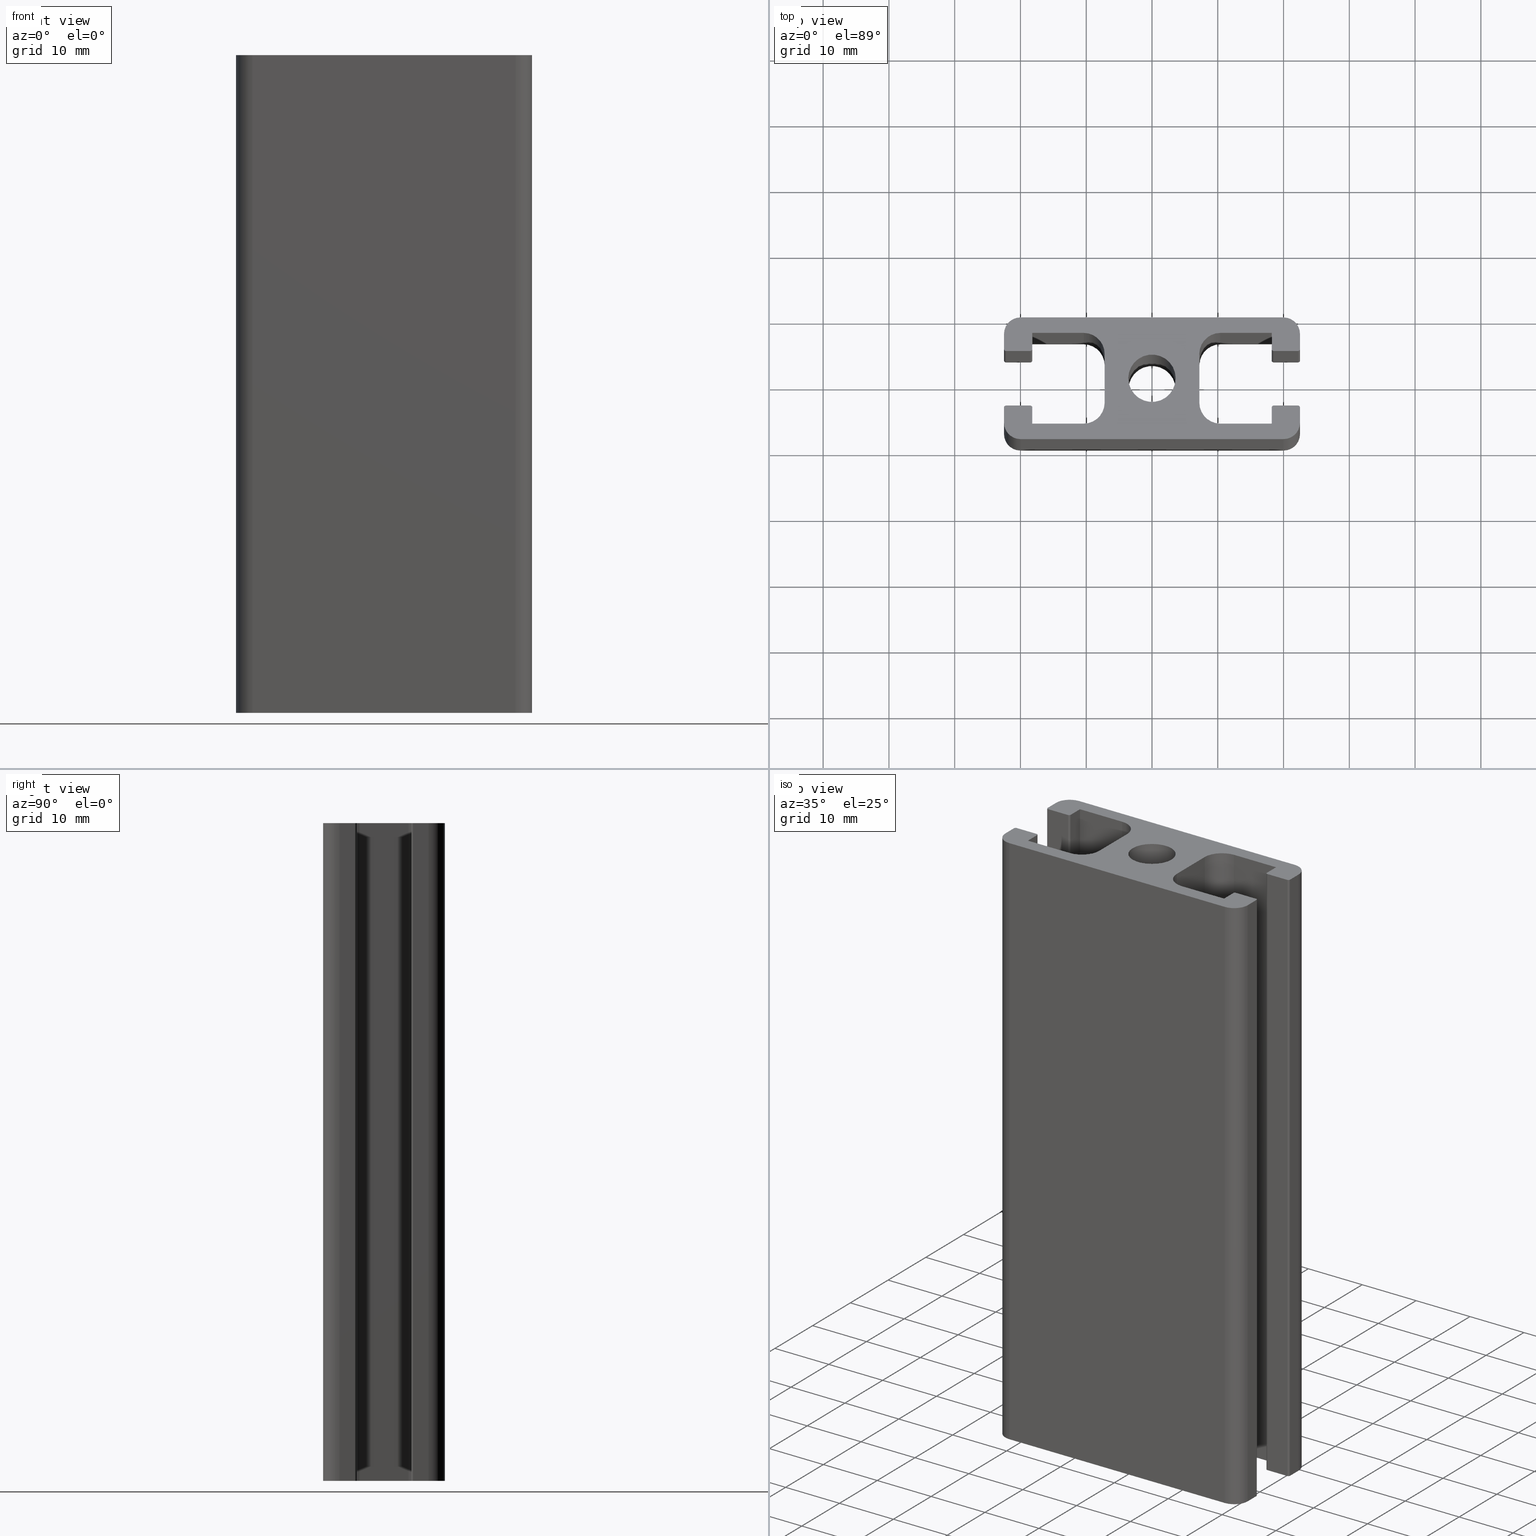
[diagram: canonical four-view strip — front | top / right | iso, engineering-drawing reading convention]
A machine part, canonical four-view strip (front | top / right | iso — engineering-drawing reading convention). The complete STEP part file that produces these views, byte-faithful:
ISO-10303-21;
HEADER;
/* Generated by software containing ST-Developer
 * from STEP Tools, Inc. (www.steptools.com) 
 */

FILE_DESCRIPTION(
/* description */ (''),
/* implementation_level */ '2;1');

FILE_NAME(
/* name */ 
'Q:\\Catalogo\\1_Profili Dierre\\Per Download Web\\Serie 45\\BPRDD0000
128.stp',
/* time_stamp */ '2017-07-12T17:33:23+02:00',
/* author */ ('fzagni'),
/* organization */ (''),
/* preprocessor_version */ 'ST-DEVELOPER v16.1',
/* originating_system */ 'Autodesk Inventor 2016',
/* authorisation */ '');

FILE_SCHEMA (('AUTOMOTIVE_DESIGN { 1 0 10303 214 3 1 1 }'));
ENDSEC;

DATA;
#10=MECHANICAL_DESIGN_GEOMETRIC_PRESENTATION_REPRESENTATION('',(#13),#1293);
#11=SHAPE_REPRESENTATION_RELATIONSHIP('SRR','None',#1302,#12);
#12=ADVANCED_BREP_SHAPE_REPRESENTATION('',(#14),#1292);
#13=STYLED_ITEM('',(#1311),#14);
#14=MANIFOLD_SOLID_BREP('Solido1',#767);
#15=PLANE('',#775);
#16=PLANE('',#779);
#17=PLANE('',#780);
#18=PLANE('',#784);
#19=PLANE('',#788);
#20=PLANE('',#789);
#21=PLANE('',#793);
#22=PLANE('',#800);
#23=PLANE('',#804);
#24=PLANE('',#805);
#25=PLANE('',#809);
#26=PLANE('',#816);
#27=PLANE('',#820);
#28=PLANE('',#821);
#29=PLANE('',#822);
#30=PLANE('',#823);
#31=PLANE('',#824);
#32=PLANE('',#825);
#33=PLANE('',#826);
#34=PLANE('',#835);
#35=PLANE('',#840);
#36=PLANE('',#841);
#37=LINE('',#1077,#113);
#38=LINE('',#1080,#114);
#39=LINE('',#1083,#115);
#40=LINE('',#1085,#116);
#41=LINE('',#1086,#117);
#42=LINE('',#1092,#118);
#43=LINE('',#1095,#119);
#44=LINE('',#1097,#120);
#45=LINE('',#1098,#121);
#46=LINE('',#1101,#122);
#47=LINE('',#1103,#123);
#48=LINE('',#1104,#124);
#49=LINE('',#1110,#125);
#50=LINE('',#1113,#126);
#51=LINE('',#1115,#127);
#52=LINE('',#1116,#128);
#53=LINE('',#1122,#129);
#54=LINE('',#1125,#130);
#55=LINE('',#1127,#131);
#56=LINE('',#1128,#132);
#57=LINE('',#1131,#133);
#58=LINE('',#1133,#134);
#59=LINE('',#1134,#135);
#60=LINE('',#1140,#136);
#61=LINE('',#1143,#137);
#62=LINE('',#1145,#138);
#63=LINE('',#1146,#139);
#64=LINE('',#1152,#140);
#65=LINE('',#1158,#141);
#66=LINE('',#1161,#142);
#67=LINE('',#1164,#143);
#68=LINE('',#1166,#144);
#69=LINE('',#1167,#145);
#70=LINE('',#1172,#146);
#71=LINE('',#1176,#147);
#72=LINE('',#1178,#148);
#73=LINE('',#1179,#149);
#74=LINE('',#1182,#150);
#75=LINE('',#1184,#151);
#76=LINE('',#1185,#152);
#77=LINE('',#1190,#153);
#78=LINE('',#1194,#154);
#79=LINE('',#1196,#155);
#80=LINE('',#1197,#156);
#81=LINE('',#1202,#157);
#82=LINE('',#1209,#158);
#83=LINE('',#1212,#159);
#84=LINE('',#1215,#160);
#85=LINE('',#1217,#161);
#86=LINE('',#1218,#162);
#87=LINE('',#1223,#163);
#88=LINE('',#1227,#164);
#89=LINE('',#1229,#165);
#90=LINE('',#1230,#166);
#91=LINE('',#1232,#167);
#92=LINE('',#1233,#168);
#93=LINE('',#1236,#169);
#94=LINE('',#1238,#170);
#95=LINE('',#1239,#171);
#96=LINE('',#1242,#172);
#97=LINE('',#1244,#173);
#98=LINE('',#1245,#174);
#99=LINE('',#1248,#175);
#100=LINE('',#1250,#176);
#101=LINE('',#1251,#177);
#102=LINE('',#1254,#178);
#103=LINE('',#1256,#179);
#104=LINE('',#1257,#180);
#105=LINE('',#1262,#181);
#106=LINE('',#1267,#182);
#107=LINE('',#1272,#183);
#108=LINE('',#1275,#184);
#109=LINE('',#1279,#185);
#110=LINE('',#1280,#186);
#111=LINE('',#1285,#187);
#112=LINE('',#1288,#188);
#113=VECTOR('',#854,100.);
#114=VECTOR('',#857,100.);
#115=VECTOR('',#860,3.7);
#116=VECTOR('',#861,3.7);
#117=VECTOR('',#862,100.);
#118=VECTOR('',#869,100.);
#119=VECTOR('',#872,2.45);
#120=VECTOR('',#873,2.45);
#121=VECTOR('',#874,100.);
#122=VECTOR('',#877,7.8);
#123=VECTOR('',#878,7.8);
#124=VECTOR('',#879,100.);
#125=VECTOR('',#886,100.);
#126=VECTOR('',#889,7.4);
#127=VECTOR('',#890,7.4);
#128=VECTOR('',#891,100.);
#129=VECTOR('',#898,100.);
#130=VECTOR('',#901,7.8);
#131=VECTOR('',#902,7.8);
#132=VECTOR('',#903,100.);
#133=VECTOR('',#906,2.45);
#134=VECTOR('',#907,2.45);
#135=VECTOR('',#908,100.);
#136=VECTOR('',#915,100.);
#137=VECTOR('',#918,3.7);
#138=VECTOR('',#919,3.7);
#139=VECTOR('',#920,100.);
#140=VECTOR('',#927,100.);
#141=VECTOR('',#932,100.);
#142=VECTOR('',#935,100.);
#143=VECTOR('',#938,7.4);
#144=VECTOR('',#939,100.);
#145=VECTOR('',#940,7.4);
#146=VECTOR('',#945,100.);
#147=VECTOR('',#950,7.8);
#148=VECTOR('',#951,100.);
#149=VECTOR('',#952,7.8);
#150=VECTOR('',#955,2.45);
#151=VECTOR('',#956,100.);
#152=VECTOR('',#957,2.45);
#153=VECTOR('',#962,100.);
#154=VECTOR('',#967,3.7);
#155=VECTOR('',#968,100.);
#156=VECTOR('',#969,3.7);
#157=VECTOR('',#974,100.);
#158=VECTOR('',#981,100.);
#159=VECTOR('',#984,100.);
#160=VECTOR('',#987,3.7);
#161=VECTOR('',#988,100.);
#162=VECTOR('',#989,3.7);
#163=VECTOR('',#994,100.);
#164=VECTOR('',#999,2.45);
#165=VECTOR('',#1000,100.);
#166=VECTOR('',#1001,2.45);
#167=VECTOR('',#1004,7.8);
#168=VECTOR('',#1005,7.8);
#169=VECTOR('',#1008,2.3);
#170=VECTOR('',#1009,100.);
#171=VECTOR('',#1010,2.3);
#172=VECTOR('',#1013,2.30000000000058);
#173=VECTOR('',#1014,100.);
#174=VECTOR('',#1015,2.30000000000058);
#175=VECTOR('',#1018,2.3);
#176=VECTOR('',#1019,100.);
#177=VECTOR('',#1020,2.3);
#178=VECTOR('',#1023,2.3000000000006);
#179=VECTOR('',#1024,100.);
#180=VECTOR('',#1025,2.3000000000006);
#181=VECTOR('',#1030,40.);
#182=VECTOR('',#1035,40.);
#183=VECTOR('',#1042,100.);
#184=VECTOR('',#1045,100.);
#185=VECTOR('',#1050,100.);
#186=VECTOR('',#1051,40.);
#187=VECTOR('',#1058,100.);
#188=VECTOR('',#1063,40.);
#189=FACE_BOUND('',#232,.T.);
#190=FACE_BOUND('',#264,.T.);
#191=FACE_BOUND('',#272,.T.);
#192=FACE_OUTER_BOUND('',#231,.T.);
#193=FACE_OUTER_BOUND('',#233,.T.);
#194=FACE_OUTER_BOUND('',#234,.T.);
#195=FACE_OUTER_BOUND('',#235,.T.);
#196=FACE_OUTER_BOUND('',#236,.T.);
#197=FACE_OUTER_BOUND('',#237,.T.);
#198=FACE_OUTER_BOUND('',#238,.T.);
#199=FACE_OUTER_BOUND('',#239,.T.);
#200=FACE_OUTER_BOUND('',#240,.T.);
#201=FACE_OUTER_BOUND('',#241,.T.);
#202=FACE_OUTER_BOUND('',#242,.T.);
#203=FACE_OUTER_BOUND('',#243,.T.);
#204=FACE_OUTER_BOUND('',#244,.T.);
#205=FACE_OUTER_BOUND('',#245,.T.);
#206=FACE_OUTER_BOUND('',#246,.T.);
#207=FACE_OUTER_BOUND('',#247,.T.);
#208=FACE_OUTER_BOUND('',#248,.T.);
#209=FACE_OUTER_BOUND('',#249,.T.);
#210=FACE_OUTER_BOUND('',#250,.T.);
#211=FACE_OUTER_BOUND('',#251,.T.);
#212=FACE_OUTER_BOUND('',#252,.T.);
#213=FACE_OUTER_BOUND('',#253,.T.);
#214=FACE_OUTER_BOUND('',#254,.T.);
#215=FACE_OUTER_BOUND('',#255,.T.);
#216=FACE_OUTER_BOUND('',#256,.T.);
#217=FACE_OUTER_BOUND('',#257,.T.);
#218=FACE_OUTER_BOUND('',#258,.T.);
#219=FACE_OUTER_BOUND('',#259,.T.);
#220=FACE_OUTER_BOUND('',#260,.T.);
#221=FACE_OUTER_BOUND('',#261,.T.);
#222=FACE_OUTER_BOUND('',#262,.T.);
#223=FACE_OUTER_BOUND('',#263,.T.);
#224=FACE_OUTER_BOUND('',#265,.T.);
#225=FACE_OUTER_BOUND('',#266,.T.);
#226=FACE_OUTER_BOUND('',#267,.T.);
#227=FACE_OUTER_BOUND('',#268,.T.);
#228=FACE_OUTER_BOUND('',#269,.T.);
#229=FACE_OUTER_BOUND('',#270,.T.);
#230=FACE_OUTER_BOUND('',#271,.T.);
#231=EDGE_LOOP('',(#491));
#232=EDGE_LOOP('',(#492));
#233=EDGE_LOOP('',(#493,#494,#495,#496));
#234=EDGE_LOOP('',(#497,#498,#499,#500));
#235=EDGE_LOOP('',(#501,#502,#503,#504));
#236=EDGE_LOOP('',(#505,#506,#507,#508));
#237=EDGE_LOOP('',(#509,#510,#511,#512));
#238=EDGE_LOOP('',(#513,#514,#515,#516));
#239=EDGE_LOOP('',(#517,#518,#519,#520));
#240=EDGE_LOOP('',(#521,#522,#523,#524));
#241=EDGE_LOOP('',(#525,#526,#527,#528));
#242=EDGE_LOOP('',(#529,#530,#531,#532));
#243=EDGE_LOOP('',(#533,#534,#535,#536));
#244=EDGE_LOOP('',(#537,#538,#539,#540));
#245=EDGE_LOOP('',(#541,#542,#543,#544));
#246=EDGE_LOOP('',(#545,#546,#547,#548));
#247=EDGE_LOOP('',(#549,#550,#551,#552));
#248=EDGE_LOOP('',(#553,#554,#555,#556));
#249=EDGE_LOOP('',(#557,#558,#559,#560));
#250=EDGE_LOOP('',(#561,#562,#563,#564));
#251=EDGE_LOOP('',(#565,#566,#567,#568));
#252=EDGE_LOOP('',(#569,#570,#571,#572));
#253=EDGE_LOOP('',(#573,#574,#575,#576));
#254=EDGE_LOOP('',(#577,#578,#579,#580));
#255=EDGE_LOOP('',(#581,#582,#583,#584));
#256=EDGE_LOOP('',(#585,#586,#587,#588));
#257=EDGE_LOOP('',(#589,#590,#591,#592));
#258=EDGE_LOOP('',(#593,#594,#595,#596));
#259=EDGE_LOOP('',(#597,#598,#599,#600));
#260=EDGE_LOOP('',(#601,#602,#603,#604));
#261=EDGE_LOOP('',(#605,#606,#607,#608));
#262=EDGE_LOOP('',(#609,#610,#611,#612));
#263=EDGE_LOOP('',(#613,#614,#615,#616,#617,#618,#619,#620,#621,#622,#623,
#624,#625,#626,#627,#628,#629,#630,#631,#632,#633,#634,#635,#636,#637,#638,
#639,#640,#641,#642,#643,#644,#645,#646,#647,#648));
#264=EDGE_LOOP('',(#649));
#265=EDGE_LOOP('',(#650,#651,#652,#653));
#266=EDGE_LOOP('',(#654,#655,#656,#657));
#267=EDGE_LOOP('',(#658,#659,#660,#661));
#268=EDGE_LOOP('',(#662,#663,#664,#665));
#269=EDGE_LOOP('',(#666,#667,#668,#669));
#270=EDGE_LOOP('',(#670,#671,#672,#673));
#271=EDGE_LOOP('',(#674,#675,#676,#677,#678,#679,#680,#681,#682,#683,#684,
#685,#686,#687,#688,#689,#690,#691,#692,#693,#694,#695,#696,#697,#698,#699,
#700,#701,#702,#703,#704,#705,#706,#707,#708,#709));
#272=EDGE_LOOP('',(#710));
#273=CIRCLE('',#770,3.6);
#274=CIRCLE('',#771,3.6);
#275=CIRCLE('',#773,0.299999999999404);
#276=CIRCLE('',#774,0.299999999999404);
#277=CIRCLE('',#777,0.299999999999406);
#278=CIRCLE('',#778,0.299999999999406);
#279=CIRCLE('',#782,3.19999999999359);
#280=CIRCLE('',#783,3.19999999999359);
#281=CIRCLE('',#786,3.19999999999362);
#282=CIRCLE('',#787,3.19999999999362);
#283=CIRCLE('',#791,0.299999999999404);
#284=CIRCLE('',#792,0.299999999999404);
#285=CIRCLE('',#795,0.299999999999407);
#286=CIRCLE('',#796,0.299999999999407);
#287=CIRCLE('',#798,3.1999999999936);
#288=CIRCLE('',#799,3.1999999999936);
#289=CIRCLE('',#802,3.1999999999936);
#290=CIRCLE('',#803,3.1999999999936);
#291=CIRCLE('',#807,0.299999999999406);
#292=CIRCLE('',#808,0.299999999999406);
#293=CIRCLE('',#811,0.299999999999397);
#294=CIRCLE('',#812,0.299999999999397);
#295=CIRCLE('',#814,0.299999999999399);
#296=CIRCLE('',#815,0.299999999999399);
#297=CIRCLE('',#818,0.299999999999404);
#298=CIRCLE('',#819,0.299999999999404);
#299=CIRCLE('',#827,2.5);
#300=CIRCLE('',#828,2.5);
#301=CIRCLE('',#829,2.5);
#302=CIRCLE('',#830,2.5);
#303=CIRCLE('',#832,2.5);
#304=CIRCLE('',#834,2.5);
#305=CIRCLE('',#837,2.5);
#306=CIRCLE('',#839,2.5);
#307=VERTEX_POINT('',#1068);
#308=VERTEX_POINT('',#1070);
#309=VERTEX_POINT('',#1073);
#310=VERTEX_POINT('',#1074);
#311=VERTEX_POINT('',#1076);
#312=VERTEX_POINT('',#1078);
#313=VERTEX_POINT('',#1082);
#314=VERTEX_POINT('',#1084);
#315=VERTEX_POINT('',#1088);
#316=VERTEX_POINT('',#1090);
#317=VERTEX_POINT('',#1094);
#318=VERTEX_POINT('',#1096);
#319=VERTEX_POINT('',#1100);
#320=VERTEX_POINT('',#1102);
#321=VERTEX_POINT('',#1106);
#322=VERTEX_POINT('',#1108);
#323=VERTEX_POINT('',#1112);
#324=VERTEX_POINT('',#1114);
#325=VERTEX_POINT('',#1118);
#326=VERTEX_POINT('',#1120);
#327=VERTEX_POINT('',#1124);
#328=VERTEX_POINT('',#1126);
#329=VERTEX_POINT('',#1130);
#330=VERTEX_POINT('',#1132);
#331=VERTEX_POINT('',#1136);
#332=VERTEX_POINT('',#1138);
#333=VERTEX_POINT('',#1142);
#334=VERTEX_POINT('',#1144);
#335=VERTEX_POINT('',#1148);
#336=VERTEX_POINT('',#1150);
#337=VERTEX_POINT('',#1154);
#338=VERTEX_POINT('',#1155);
#339=VERTEX_POINT('',#1157);
#340=VERTEX_POINT('',#1159);
#341=VERTEX_POINT('',#1163);
#342=VERTEX_POINT('',#1165);
#343=VERTEX_POINT('',#1169);
#344=VERTEX_POINT('',#1171);
#345=VERTEX_POINT('',#1175);
#346=VERTEX_POINT('',#1177);
#347=VERTEX_POINT('',#1181);
#348=VERTEX_POINT('',#1183);
#349=VERTEX_POINT('',#1187);
#350=VERTEX_POINT('',#1189);
#351=VERTEX_POINT('',#1193);
#352=VERTEX_POINT('',#1195);
#353=VERTEX_POINT('',#1199);
#354=VERTEX_POINT('',#1201);
#355=VERTEX_POINT('',#1205);
#356=VERTEX_POINT('',#1206);
#357=VERTEX_POINT('',#1208);
#358=VERTEX_POINT('',#1210);
#359=VERTEX_POINT('',#1214);
#360=VERTEX_POINT('',#1216);
#361=VERTEX_POINT('',#1220);
#362=VERTEX_POINT('',#1222);
#363=VERTEX_POINT('',#1226);
#364=VERTEX_POINT('',#1228);
#365=VERTEX_POINT('',#1235);
#366=VERTEX_POINT('',#1237);
#367=VERTEX_POINT('',#1241);
#368=VERTEX_POINT('',#1243);
#369=VERTEX_POINT('',#1247);
#370=VERTEX_POINT('',#1249);
#371=VERTEX_POINT('',#1253);
#372=VERTEX_POINT('',#1255);
#373=VERTEX_POINT('',#1259);
#374=VERTEX_POINT('',#1261);
#375=VERTEX_POINT('',#1264);
#376=VERTEX_POINT('',#1266);
#377=VERTEX_POINT('',#1270);
#378=VERTEX_POINT('',#1274);
#379=VERTEX_POINT('',#1278);
#380=VERTEX_POINT('',#1284);
#381=EDGE_CURVE('',#307,#307,#273,.T.);
#382=EDGE_CURVE('',#308,#308,#274,.T.);
#383=EDGE_CURVE('',#309,#310,#275,.T.);
#384=EDGE_CURVE('',#309,#311,#37,.T.);
#385=EDGE_CURVE('',#312,#311,#276,.T.);
#386=EDGE_CURVE('',#312,#310,#38,.T.);
#387=EDGE_CURVE('',#310,#313,#39,.T.);
#388=EDGE_CURVE('',#314,#312,#40,.T.);
#389=EDGE_CURVE('',#314,#313,#41,.T.);
#390=EDGE_CURVE('',#313,#315,#277,.T.);
#391=EDGE_CURVE('',#316,#314,#278,.T.);
#392=EDGE_CURVE('',#316,#315,#42,.T.);
#393=EDGE_CURVE('',#315,#317,#43,.T.);
#394=EDGE_CURVE('',#318,#316,#44,.T.);
#395=EDGE_CURVE('',#318,#317,#45,.T.);
#396=EDGE_CURVE('',#317,#319,#46,.T.);
#397=EDGE_CURVE('',#320,#318,#47,.T.);
#398=EDGE_CURVE('',#320,#319,#48,.T.);
#399=EDGE_CURVE('',#319,#321,#279,.T.);
#400=EDGE_CURVE('',#322,#320,#280,.T.);
#401=EDGE_CURVE('',#322,#321,#49,.T.);
#402=EDGE_CURVE('',#321,#323,#50,.T.);
#403=EDGE_CURVE('',#324,#322,#51,.T.);
#404=EDGE_CURVE('',#324,#323,#52,.T.);
#405=EDGE_CURVE('',#323,#325,#281,.T.);
#406=EDGE_CURVE('',#326,#324,#282,.T.);
#407=EDGE_CURVE('',#326,#325,#53,.T.);
#408=EDGE_CURVE('',#325,#327,#54,.T.);
#409=EDGE_CURVE('',#328,#326,#55,.T.);
#410=EDGE_CURVE('',#328,#327,#56,.T.);
#411=EDGE_CURVE('',#327,#329,#57,.T.);
#412=EDGE_CURVE('',#330,#328,#58,.T.);
#413=EDGE_CURVE('',#330,#329,#59,.T.);
#414=EDGE_CURVE('',#329,#331,#283,.T.);
#415=EDGE_CURVE('',#332,#330,#284,.T.);
#416=EDGE_CURVE('',#332,#331,#60,.T.);
#417=EDGE_CURVE('',#331,#333,#61,.T.);
#418=EDGE_CURVE('',#334,#332,#62,.T.);
#419=EDGE_CURVE('',#334,#333,#63,.T.);
#420=EDGE_CURVE('',#333,#335,#285,.T.);
#421=EDGE_CURVE('',#336,#334,#286,.T.);
#422=EDGE_CURVE('',#335,#336,#64,.T.);
#423=EDGE_CURVE('',#337,#338,#287,.T.);
#424=EDGE_CURVE('',#339,#337,#65,.T.);
#425=EDGE_CURVE('',#340,#339,#288,.T.);
#426=EDGE_CURVE('',#340,#338,#66,.T.);
#427=EDGE_CURVE('',#341,#337,#67,.T.);
#428=EDGE_CURVE('',#342,#341,#68,.T.);
#429=EDGE_CURVE('',#339,#342,#69,.T.);
#430=EDGE_CURVE('',#343,#341,#289,.T.);
#431=EDGE_CURVE('',#344,#343,#70,.T.);
#432=EDGE_CURVE('',#342,#344,#290,.T.);
#433=EDGE_CURVE('',#345,#343,#71,.T.);
#434=EDGE_CURVE('',#346,#345,#72,.T.);
#435=EDGE_CURVE('',#344,#346,#73,.T.);
#436=EDGE_CURVE('',#347,#345,#74,.T.);
#437=EDGE_CURVE('',#348,#347,#75,.T.);
#438=EDGE_CURVE('',#346,#348,#76,.T.);
#439=EDGE_CURVE('',#349,#347,#291,.T.);
#440=EDGE_CURVE('',#350,#349,#77,.T.);
#441=EDGE_CURVE('',#348,#350,#292,.T.);
#442=EDGE_CURVE('',#351,#349,#78,.T.);
#443=EDGE_CURVE('',#352,#351,#79,.T.);
#444=EDGE_CURVE('',#350,#352,#80,.T.);
#445=EDGE_CURVE('',#353,#351,#293,.T.);
#446=EDGE_CURVE('',#353,#354,#81,.T.);
#447=EDGE_CURVE('',#352,#354,#294,.T.);
#448=EDGE_CURVE('',#355,#356,#295,.T.);
#449=EDGE_CURVE('',#357,#355,#82,.T.);
#450=EDGE_CURVE('',#358,#357,#296,.T.);
#451=EDGE_CURVE('',#356,#358,#83,.T.);
#452=EDGE_CURVE('',#359,#355,#84,.T.);
#453=EDGE_CURVE('',#360,#359,#85,.T.);
#454=EDGE_CURVE('',#357,#360,#86,.T.);
#455=EDGE_CURVE('',#361,#359,#297,.T.);
#456=EDGE_CURVE('',#362,#361,#87,.T.);
#457=EDGE_CURVE('',#360,#362,#298,.T.);
#458=EDGE_CURVE('',#363,#361,#88,.T.);
#459=EDGE_CURVE('',#364,#363,#89,.T.);
#460=EDGE_CURVE('',#362,#364,#90,.T.);
#461=EDGE_CURVE('',#338,#363,#91,.T.);
#462=EDGE_CURVE('',#364,#340,#92,.T.);
#463=EDGE_CURVE('',#365,#336,#93,.T.);
#464=EDGE_CURVE('',#365,#366,#94,.T.);
#465=EDGE_CURVE('',#366,#335,#95,.T.);
#466=EDGE_CURVE('',#309,#367,#96,.T.);
#467=EDGE_CURVE('',#368,#367,#97,.T.);
#468=EDGE_CURVE('',#311,#368,#98,.T.);
#469=EDGE_CURVE('',#369,#358,#99,.T.);
#470=EDGE_CURVE('',#369,#370,#100,.T.);
#471=EDGE_CURVE('',#370,#356,#101,.T.);
#472=EDGE_CURVE('',#353,#371,#102,.T.);
#473=EDGE_CURVE('',#372,#371,#103,.T.);
#474=EDGE_CURVE('',#354,#372,#104,.T.);
#475=EDGE_CURVE('',#373,#366,#299,.T.);
#476=EDGE_CURVE('',#374,#373,#105,.T.);
#477=EDGE_CURVE('',#371,#374,#300,.T.);
#478=EDGE_CURVE('',#375,#370,#301,.T.);
#479=EDGE_CURVE('',#376,#375,#106,.T.);
#480=EDGE_CURVE('',#367,#376,#302,.T.);
#481=EDGE_CURVE('',#377,#365,#303,.T.);
#482=EDGE_CURVE('',#377,#373,#107,.T.);
#483=EDGE_CURVE('',#378,#376,#108,.T.);
#484=EDGE_CURVE('',#368,#378,#304,.T.);
#485=EDGE_CURVE('',#379,#375,#109,.T.);
#486=EDGE_CURVE('',#378,#379,#110,.T.);
#487=EDGE_CURVE('',#379,#369,#305,.T.);
#488=EDGE_CURVE('',#380,#374,#111,.T.);
#489=EDGE_CURVE('',#372,#380,#306,.T.);
#490=EDGE_CURVE('',#380,#377,#112,.T.);
#491=ORIENTED_EDGE('',*,*,#381,.F.);
#492=ORIENTED_EDGE('',*,*,#382,.F.);
#493=ORIENTED_EDGE('',*,*,#383,.F.);
#494=ORIENTED_EDGE('',*,*,#384,.T.);
#495=ORIENTED_EDGE('',*,*,#385,.F.);
#496=ORIENTED_EDGE('',*,*,#386,.T.);
#497=ORIENTED_EDGE('',*,*,#387,.F.);
#498=ORIENTED_EDGE('',*,*,#386,.F.);
#499=ORIENTED_EDGE('',*,*,#388,.F.);
#500=ORIENTED_EDGE('',*,*,#389,.T.);
#501=ORIENTED_EDGE('',*,*,#390,.F.);
#502=ORIENTED_EDGE('',*,*,#389,.F.);
#503=ORIENTED_EDGE('',*,*,#391,.F.);
#504=ORIENTED_EDGE('',*,*,#392,.T.);
#505=ORIENTED_EDGE('',*,*,#393,.F.);
#506=ORIENTED_EDGE('',*,*,#392,.F.);
#507=ORIENTED_EDGE('',*,*,#394,.F.);
#508=ORIENTED_EDGE('',*,*,#395,.T.);
#509=ORIENTED_EDGE('',*,*,#396,.F.);
#510=ORIENTED_EDGE('',*,*,#395,.F.);
#511=ORIENTED_EDGE('',*,*,#397,.F.);
#512=ORIENTED_EDGE('',*,*,#398,.T.);
#513=ORIENTED_EDGE('',*,*,#399,.F.);
#514=ORIENTED_EDGE('',*,*,#398,.F.);
#515=ORIENTED_EDGE('',*,*,#400,.F.);
#516=ORIENTED_EDGE('',*,*,#401,.T.);
#517=ORIENTED_EDGE('',*,*,#402,.F.);
#518=ORIENTED_EDGE('',*,*,#401,.F.);
#519=ORIENTED_EDGE('',*,*,#403,.F.);
#520=ORIENTED_EDGE('',*,*,#404,.T.);
#521=ORIENTED_EDGE('',*,*,#405,.F.);
#522=ORIENTED_EDGE('',*,*,#404,.F.);
#523=ORIENTED_EDGE('',*,*,#406,.F.);
#524=ORIENTED_EDGE('',*,*,#407,.T.);
#525=ORIENTED_EDGE('',*,*,#408,.F.);
#526=ORIENTED_EDGE('',*,*,#407,.F.);
#527=ORIENTED_EDGE('',*,*,#409,.F.);
#528=ORIENTED_EDGE('',*,*,#410,.T.);
#529=ORIENTED_EDGE('',*,*,#411,.F.);
#530=ORIENTED_EDGE('',*,*,#410,.F.);
#531=ORIENTED_EDGE('',*,*,#412,.F.);
#532=ORIENTED_EDGE('',*,*,#413,.T.);
#533=ORIENTED_EDGE('',*,*,#414,.F.);
#534=ORIENTED_EDGE('',*,*,#413,.F.);
#535=ORIENTED_EDGE('',*,*,#415,.F.);
#536=ORIENTED_EDGE('',*,*,#416,.T.);
#537=ORIENTED_EDGE('',*,*,#417,.F.);
#538=ORIENTED_EDGE('',*,*,#416,.F.);
#539=ORIENTED_EDGE('',*,*,#418,.F.);
#540=ORIENTED_EDGE('',*,*,#419,.T.);
#541=ORIENTED_EDGE('',*,*,#420,.F.);
#542=ORIENTED_EDGE('',*,*,#419,.F.);
#543=ORIENTED_EDGE('',*,*,#421,.F.);
#544=ORIENTED_EDGE('',*,*,#422,.F.);
#545=ORIENTED_EDGE('',*,*,#423,.F.);
#546=ORIENTED_EDGE('',*,*,#424,.F.);
#547=ORIENTED_EDGE('',*,*,#425,.F.);
#548=ORIENTED_EDGE('',*,*,#426,.T.);
#549=ORIENTED_EDGE('',*,*,#427,.F.);
#550=ORIENTED_EDGE('',*,*,#428,.F.);
#551=ORIENTED_EDGE('',*,*,#429,.F.);
#552=ORIENTED_EDGE('',*,*,#424,.T.);
#553=ORIENTED_EDGE('',*,*,#430,.F.);
#554=ORIENTED_EDGE('',*,*,#431,.F.);
#555=ORIENTED_EDGE('',*,*,#432,.F.);
#556=ORIENTED_EDGE('',*,*,#428,.T.);
#557=ORIENTED_EDGE('',*,*,#433,.F.);
#558=ORIENTED_EDGE('',*,*,#434,.F.);
#559=ORIENTED_EDGE('',*,*,#435,.F.);
#560=ORIENTED_EDGE('',*,*,#431,.T.);
#561=ORIENTED_EDGE('',*,*,#436,.F.);
#562=ORIENTED_EDGE('',*,*,#437,.F.);
#563=ORIENTED_EDGE('',*,*,#438,.F.);
#564=ORIENTED_EDGE('',*,*,#434,.T.);
#565=ORIENTED_EDGE('',*,*,#439,.F.);
#566=ORIENTED_EDGE('',*,*,#440,.F.);
#567=ORIENTED_EDGE('',*,*,#441,.F.);
#568=ORIENTED_EDGE('',*,*,#437,.T.);
#569=ORIENTED_EDGE('',*,*,#442,.F.);
#570=ORIENTED_EDGE('',*,*,#443,.F.);
#571=ORIENTED_EDGE('',*,*,#444,.F.);
#572=ORIENTED_EDGE('',*,*,#440,.T.);
#573=ORIENTED_EDGE('',*,*,#445,.F.);
#574=ORIENTED_EDGE('',*,*,#446,.T.);
#575=ORIENTED_EDGE('',*,*,#447,.F.);
#576=ORIENTED_EDGE('',*,*,#443,.T.);
#577=ORIENTED_EDGE('',*,*,#448,.F.);
#578=ORIENTED_EDGE('',*,*,#449,.F.);
#579=ORIENTED_EDGE('',*,*,#450,.F.);
#580=ORIENTED_EDGE('',*,*,#451,.F.);
#581=ORIENTED_EDGE('',*,*,#452,.F.);
#582=ORIENTED_EDGE('',*,*,#453,.F.);
#583=ORIENTED_EDGE('',*,*,#454,.F.);
#584=ORIENTED_EDGE('',*,*,#449,.T.);
#585=ORIENTED_EDGE('',*,*,#455,.F.);
#586=ORIENTED_EDGE('',*,*,#456,.F.);
#587=ORIENTED_EDGE('',*,*,#457,.F.);
#588=ORIENTED_EDGE('',*,*,#453,.T.);
#589=ORIENTED_EDGE('',*,*,#458,.F.);
#590=ORIENTED_EDGE('',*,*,#459,.F.);
#591=ORIENTED_EDGE('',*,*,#460,.F.);
#592=ORIENTED_EDGE('',*,*,#456,.T.);
#593=ORIENTED_EDGE('',*,*,#461,.F.);
#594=ORIENTED_EDGE('',*,*,#426,.F.);
#595=ORIENTED_EDGE('',*,*,#462,.F.);
#596=ORIENTED_EDGE('',*,*,#459,.T.);
#597=ORIENTED_EDGE('',*,*,#422,.T.);
#598=ORIENTED_EDGE('',*,*,#463,.F.);
#599=ORIENTED_EDGE('',*,*,#464,.T.);
#600=ORIENTED_EDGE('',*,*,#465,.T.);
#601=ORIENTED_EDGE('',*,*,#384,.F.);
#602=ORIENTED_EDGE('',*,*,#466,.T.);
#603=ORIENTED_EDGE('',*,*,#467,.F.);
#604=ORIENTED_EDGE('',*,*,#468,.F.);
#605=ORIENTED_EDGE('',*,*,#451,.T.);
#606=ORIENTED_EDGE('',*,*,#469,.F.);
#607=ORIENTED_EDGE('',*,*,#470,.T.);
#608=ORIENTED_EDGE('',*,*,#471,.T.);
#609=ORIENTED_EDGE('',*,*,#446,.F.);
#610=ORIENTED_EDGE('',*,*,#472,.T.);
#611=ORIENTED_EDGE('',*,*,#473,.F.);
#612=ORIENTED_EDGE('',*,*,#474,.F.);
#613=ORIENTED_EDGE('',*,*,#383,.T.);
#614=ORIENTED_EDGE('',*,*,#387,.T.);
#615=ORIENTED_EDGE('',*,*,#390,.T.);
#616=ORIENTED_EDGE('',*,*,#393,.T.);
#617=ORIENTED_EDGE('',*,*,#396,.T.);
#618=ORIENTED_EDGE('',*,*,#399,.T.);
#619=ORIENTED_EDGE('',*,*,#402,.T.);
#620=ORIENTED_EDGE('',*,*,#405,.T.);
#621=ORIENTED_EDGE('',*,*,#408,.T.);
#622=ORIENTED_EDGE('',*,*,#411,.T.);
#623=ORIENTED_EDGE('',*,*,#414,.T.);
#624=ORIENTED_EDGE('',*,*,#417,.T.);
#625=ORIENTED_EDGE('',*,*,#420,.T.);
#626=ORIENTED_EDGE('',*,*,#465,.F.);
#627=ORIENTED_EDGE('',*,*,#475,.F.);
#628=ORIENTED_EDGE('',*,*,#476,.F.);
#629=ORIENTED_EDGE('',*,*,#477,.F.);
#630=ORIENTED_EDGE('',*,*,#472,.F.);
#631=ORIENTED_EDGE('',*,*,#445,.T.);
#632=ORIENTED_EDGE('',*,*,#442,.T.);
#633=ORIENTED_EDGE('',*,*,#439,.T.);
#634=ORIENTED_EDGE('',*,*,#436,.T.);
#635=ORIENTED_EDGE('',*,*,#433,.T.);
#636=ORIENTED_EDGE('',*,*,#430,.T.);
#637=ORIENTED_EDGE('',*,*,#427,.T.);
#638=ORIENTED_EDGE('',*,*,#423,.T.);
#639=ORIENTED_EDGE('',*,*,#461,.T.);
#640=ORIENTED_EDGE('',*,*,#458,.T.);
#641=ORIENTED_EDGE('',*,*,#455,.T.);
#642=ORIENTED_EDGE('',*,*,#452,.T.);
#643=ORIENTED_EDGE('',*,*,#448,.T.);
#644=ORIENTED_EDGE('',*,*,#471,.F.);
#645=ORIENTED_EDGE('',*,*,#478,.F.);
#646=ORIENTED_EDGE('',*,*,#479,.F.);
#647=ORIENTED_EDGE('',*,*,#480,.F.);
#648=ORIENTED_EDGE('',*,*,#466,.F.);
#649=ORIENTED_EDGE('',*,*,#381,.T.);
#650=ORIENTED_EDGE('',*,*,#475,.T.);
#651=ORIENTED_EDGE('',*,*,#464,.F.);
#652=ORIENTED_EDGE('',*,*,#481,.F.);
#653=ORIENTED_EDGE('',*,*,#482,.T.);
#654=ORIENTED_EDGE('',*,*,#480,.T.);
#655=ORIENTED_EDGE('',*,*,#483,.F.);
#656=ORIENTED_EDGE('',*,*,#484,.F.);
#657=ORIENTED_EDGE('',*,*,#467,.T.);
#658=ORIENTED_EDGE('',*,*,#479,.T.);
#659=ORIENTED_EDGE('',*,*,#485,.F.);
#660=ORIENTED_EDGE('',*,*,#486,.F.);
#661=ORIENTED_EDGE('',*,*,#483,.T.);
#662=ORIENTED_EDGE('',*,*,#478,.T.);
#663=ORIENTED_EDGE('',*,*,#470,.F.);
#664=ORIENTED_EDGE('',*,*,#487,.F.);
#665=ORIENTED_EDGE('',*,*,#485,.T.);
#666=ORIENTED_EDGE('',*,*,#477,.T.);
#667=ORIENTED_EDGE('',*,*,#488,.F.);
#668=ORIENTED_EDGE('',*,*,#489,.F.);
#669=ORIENTED_EDGE('',*,*,#473,.T.);
#670=ORIENTED_EDGE('',*,*,#476,.T.);
#671=ORIENTED_EDGE('',*,*,#482,.F.);
#672=ORIENTED_EDGE('',*,*,#490,.F.);
#673=ORIENTED_EDGE('',*,*,#488,.T.);
#674=ORIENTED_EDGE('',*,*,#385,.T.);
#675=ORIENTED_EDGE('',*,*,#468,.T.);
#676=ORIENTED_EDGE('',*,*,#484,.T.);
#677=ORIENTED_EDGE('',*,*,#486,.T.);
#678=ORIENTED_EDGE('',*,*,#487,.T.);
#679=ORIENTED_EDGE('',*,*,#469,.T.);
#680=ORIENTED_EDGE('',*,*,#450,.T.);
#681=ORIENTED_EDGE('',*,*,#454,.T.);
#682=ORIENTED_EDGE('',*,*,#457,.T.);
#683=ORIENTED_EDGE('',*,*,#460,.T.);
#684=ORIENTED_EDGE('',*,*,#462,.T.);
#685=ORIENTED_EDGE('',*,*,#425,.T.);
#686=ORIENTED_EDGE('',*,*,#429,.T.);
#687=ORIENTED_EDGE('',*,*,#432,.T.);
#688=ORIENTED_EDGE('',*,*,#435,.T.);
#689=ORIENTED_EDGE('',*,*,#438,.T.);
#690=ORIENTED_EDGE('',*,*,#441,.T.);
#691=ORIENTED_EDGE('',*,*,#444,.T.);
#692=ORIENTED_EDGE('',*,*,#447,.T.);
#693=ORIENTED_EDGE('',*,*,#474,.T.);
#694=ORIENTED_EDGE('',*,*,#489,.T.);
#695=ORIENTED_EDGE('',*,*,#490,.T.);
#696=ORIENTED_EDGE('',*,*,#481,.T.);
#697=ORIENTED_EDGE('',*,*,#463,.T.);
#698=ORIENTED_EDGE('',*,*,#421,.T.);
#699=ORIENTED_EDGE('',*,*,#418,.T.);
#700=ORIENTED_EDGE('',*,*,#415,.T.);
#701=ORIENTED_EDGE('',*,*,#412,.T.);
#702=ORIENTED_EDGE('',*,*,#409,.T.);
#703=ORIENTED_EDGE('',*,*,#406,.T.);
#704=ORIENTED_EDGE('',*,*,#403,.T.);
#705=ORIENTED_EDGE('',*,*,#400,.T.);
#706=ORIENTED_EDGE('',*,*,#397,.T.);
#707=ORIENTED_EDGE('',*,*,#394,.T.);
#708=ORIENTED_EDGE('',*,*,#391,.T.);
#709=ORIENTED_EDGE('',*,*,#388,.T.);
#710=ORIENTED_EDGE('',*,*,#382,.T.);
#711=CYLINDRICAL_SURFACE('',#769,3.6);
#712=CYLINDRICAL_SURFACE('',#772,0.299999999999404);
#713=CYLINDRICAL_SURFACE('',#776,0.299999999999406);
#714=CYLINDRICAL_SURFACE('',#781,3.19999999999359);
#715=CYLINDRICAL_SURFACE('',#785,3.19999999999362);
#716=CYLINDRICAL_SURFACE('',#790,0.299999999999404);
#717=CYLINDRICAL_SURFACE('',#794,0.299999999999407);
#718=CYLINDRICAL_SURFACE('',#797,3.1999999999936);
#719=CYLINDRICAL_SURFACE('',#801,3.1999999999936);
#720=CYLINDRICAL_SURFACE('',#806,0.299999999999406);
#721=CYLINDRICAL_SURFACE('',#810,0.299999999999397);
#722=CYLINDRICAL_SURFACE('',#813,0.299999999999399);
#723=CYLINDRICAL_SURFACE('',#817,0.299999999999404);
#724=CYLINDRICAL_SURFACE('',#831,2.5);
#725=CYLINDRICAL_SURFACE('',#833,2.5);
#726=CYLINDRICAL_SURFACE('',#836,2.5);
#727=CYLINDRICAL_SURFACE('',#838,2.5);
#728=ADVANCED_FACE('',(#192,#189),#711,.F.);
#729=ADVANCED_FACE('',(#193),#712,.T.);
#730=ADVANCED_FACE('',(#194),#15,.F.);
#731=ADVANCED_FACE('',(#195),#713,.T.);
#732=ADVANCED_FACE('',(#196),#16,.F.);
#733=ADVANCED_FACE('',(#197),#17,.F.);
#734=ADVANCED_FACE('',(#198),#714,.F.);
#735=ADVANCED_FACE('',(#199),#18,.F.);
#736=ADVANCED_FACE('',(#200),#715,.F.);
#737=ADVANCED_FACE('',(#201),#19,.F.);
#738=ADVANCED_FACE('',(#202),#20,.F.);
#739=ADVANCED_FACE('',(#203),#716,.T.);
#740=ADVANCED_FACE('',(#204),#21,.F.);
#741=ADVANCED_FACE('',(#205),#717,.T.);
#742=ADVANCED_FACE('',(#206),#718,.F.);
#743=ADVANCED_FACE('',(#207),#22,.F.);
#744=ADVANCED_FACE('',(#208),#719,.F.);
#745=ADVANCED_FACE('',(#209),#23,.F.);
#746=ADVANCED_FACE('',(#210),#24,.F.);
#747=ADVANCED_FACE('',(#211),#720,.T.);
#748=ADVANCED_FACE('',(#212),#25,.F.);
#749=ADVANCED_FACE('',(#213),#721,.T.);
#750=ADVANCED_FACE('',(#214),#722,.T.);
#751=ADVANCED_FACE('',(#215),#26,.F.);
#752=ADVANCED_FACE('',(#216),#723,.T.);
#753=ADVANCED_FACE('',(#217),#27,.F.);
#754=ADVANCED_FACE('',(#218),#28,.F.);
#755=ADVANCED_FACE('',(#219),#29,.T.);
#756=ADVANCED_FACE('',(#220),#30,.T.);
#757=ADVANCED_FACE('',(#221),#31,.T.);
#758=ADVANCED_FACE('',(#222),#32,.T.);
#759=ADVANCED_FACE('',(#223,#190),#33,.T.);
#760=ADVANCED_FACE('',(#224),#724,.T.);
#761=ADVANCED_FACE('',(#225),#725,.T.);
#762=ADVANCED_FACE('',(#226),#34,.T.);
#763=ADVANCED_FACE('',(#227),#726,.T.);
#764=ADVANCED_FACE('',(#228),#727,.T.);
#765=ADVANCED_FACE('',(#229),#35,.T.);
#766=ADVANCED_FACE('',(#230,#191),#36,.F.);
#767=CLOSED_SHELL('',(#728,#729,#730,#731,#732,#733,#734,#735,#736,#737,
#738,#739,#740,#741,#742,#743,#744,#745,#746,#747,#748,#749,#750,#751,#752,
#753,#754,#755,#756,#757,#758,#759,#760,#761,#762,#763,#764,#765,#766));
#768=AXIS2_PLACEMENT_3D('placement',#1066,#842,#843);
#769=AXIS2_PLACEMENT_3D('',#1067,#844,#845);
#770=AXIS2_PLACEMENT_3D('',#1069,#846,#847);
#771=AXIS2_PLACEMENT_3D('',#1071,#848,#849);
#772=AXIS2_PLACEMENT_3D('',#1072,#850,#851);
#773=AXIS2_PLACEMENT_3D('',#1075,#852,#853);
#774=AXIS2_PLACEMENT_3D('',#1079,#855,#856);
#775=AXIS2_PLACEMENT_3D('',#1081,#858,#859);
#776=AXIS2_PLACEMENT_3D('',#1087,#863,#864);
#777=AXIS2_PLACEMENT_3D('',#1089,#865,#866);
#778=AXIS2_PLACEMENT_3D('',#1091,#867,#868);
#779=AXIS2_PLACEMENT_3D('',#1093,#870,#871);
#780=AXIS2_PLACEMENT_3D('',#1099,#875,#876);
#781=AXIS2_PLACEMENT_3D('',#1105,#880,#881);
#782=AXIS2_PLACEMENT_3D('',#1107,#882,#883);
#783=AXIS2_PLACEMENT_3D('',#1109,#884,#885);
#784=AXIS2_PLACEMENT_3D('',#1111,#887,#888);
#785=AXIS2_PLACEMENT_3D('',#1117,#892,#893);
#786=AXIS2_PLACEMENT_3D('',#1119,#894,#895);
#787=AXIS2_PLACEMENT_3D('',#1121,#896,#897);
#788=AXIS2_PLACEMENT_3D('',#1123,#899,#900);
#789=AXIS2_PLACEMENT_3D('',#1129,#904,#905);
#790=AXIS2_PLACEMENT_3D('',#1135,#909,#910);
#791=AXIS2_PLACEMENT_3D('',#1137,#911,#912);
#792=AXIS2_PLACEMENT_3D('',#1139,#913,#914);
#793=AXIS2_PLACEMENT_3D('',#1141,#916,#917);
#794=AXIS2_PLACEMENT_3D('',#1147,#921,#922);
#795=AXIS2_PLACEMENT_3D('',#1149,#923,#924);
#796=AXIS2_PLACEMENT_3D('',#1151,#925,#926);
#797=AXIS2_PLACEMENT_3D('',#1153,#928,#929);
#798=AXIS2_PLACEMENT_3D('',#1156,#930,#931);
#799=AXIS2_PLACEMENT_3D('',#1160,#933,#934);
#800=AXIS2_PLACEMENT_3D('',#1162,#936,#937);
#801=AXIS2_PLACEMENT_3D('',#1168,#941,#942);
#802=AXIS2_PLACEMENT_3D('',#1170,#943,#944);
#803=AXIS2_PLACEMENT_3D('',#1173,#946,#947);
#804=AXIS2_PLACEMENT_3D('',#1174,#948,#949);
#805=AXIS2_PLACEMENT_3D('',#1180,#953,#954);
#806=AXIS2_PLACEMENT_3D('',#1186,#958,#959);
#807=AXIS2_PLACEMENT_3D('',#1188,#960,#961);
#808=AXIS2_PLACEMENT_3D('',#1191,#963,#964);
#809=AXIS2_PLACEMENT_3D('',#1192,#965,#966);
#810=AXIS2_PLACEMENT_3D('',#1198,#970,#971);
#811=AXIS2_PLACEMENT_3D('',#1200,#972,#973);
#812=AXIS2_PLACEMENT_3D('',#1203,#975,#976);
#813=AXIS2_PLACEMENT_3D('',#1204,#977,#978);
#814=AXIS2_PLACEMENT_3D('',#1207,#979,#980);
#815=AXIS2_PLACEMENT_3D('',#1211,#982,#983);
#816=AXIS2_PLACEMENT_3D('',#1213,#985,#986);
#817=AXIS2_PLACEMENT_3D('',#1219,#990,#991);
#818=AXIS2_PLACEMENT_3D('',#1221,#992,#993);
#819=AXIS2_PLACEMENT_3D('',#1224,#995,#996);
#820=AXIS2_PLACEMENT_3D('',#1225,#997,#998);
#821=AXIS2_PLACEMENT_3D('',#1231,#1002,#1003);
#822=AXIS2_PLACEMENT_3D('',#1234,#1006,#1007);
#823=AXIS2_PLACEMENT_3D('',#1240,#1011,#1012);
#824=AXIS2_PLACEMENT_3D('',#1246,#1016,#1017);
#825=AXIS2_PLACEMENT_3D('',#1252,#1021,#1022);
#826=AXIS2_PLACEMENT_3D('',#1258,#1026,#1027);
#827=AXIS2_PLACEMENT_3D('',#1260,#1028,#1029);
#828=AXIS2_PLACEMENT_3D('',#1263,#1031,#1032);
#829=AXIS2_PLACEMENT_3D('',#1265,#1033,#1034);
#830=AXIS2_PLACEMENT_3D('',#1268,#1036,#1037);
#831=AXIS2_PLACEMENT_3D('',#1269,#1038,#1039);
#832=AXIS2_PLACEMENT_3D('',#1271,#1040,#1041);
#833=AXIS2_PLACEMENT_3D('',#1273,#1043,#1044);
#834=AXIS2_PLACEMENT_3D('',#1276,#1046,#1047);
#835=AXIS2_PLACEMENT_3D('',#1277,#1048,#1049);
#836=AXIS2_PLACEMENT_3D('',#1281,#1052,#1053);
#837=AXIS2_PLACEMENT_3D('',#1282,#1054,#1055);
#838=AXIS2_PLACEMENT_3D('',#1283,#1056,#1057);
#839=AXIS2_PLACEMENT_3D('',#1286,#1059,#1060);
#840=AXIS2_PLACEMENT_3D('',#1287,#1061,#1062);
#841=AXIS2_PLACEMENT_3D('',#1289,#1064,#1065);
#842=DIRECTION('axis',(0.,0.,1.));
#843=DIRECTION('refdir',(1.,0.,0.));
#844=DIRECTION('center_axis',(0.,0.,1.));
#845=DIRECTION('ref_axis',(-1.,0.,0.));
#846=DIRECTION('center_axis',(0.,0.,-1.));
#847=DIRECTION('ref_axis',(-1.,0.,0.));
#848=DIRECTION('center_axis',(0.,0.,1.));
#849=DIRECTION('ref_axis',(-1.,0.,0.));
#850=DIRECTION('center_axis',(0.,0.,1.));
#851=DIRECTION('ref_axis',(1.,-2.22044604925486E-14,0.));
#852=DIRECTION('center_axis',(0.,0.,1.));
#853=DIRECTION('ref_axis',(1.,-2.22044604925486E-14,0.));
#854=DIRECTION('',(0.,0.,-1.));
#855=DIRECTION('center_axis',(0.,0.,-1.));
#856=DIRECTION('ref_axis',(1.,-2.22044604925486E-14,0.));
#857=DIRECTION('',(0.,0.,1.));
#858=DIRECTION('center_axis',(-3.20764436033592E-13,1.,0.));
#859=DIRECTION('ref_axis',(0.,0.,1.));
#860=DIRECTION('',(1.,3.20764436033592E-13,0.));
#861=DIRECTION('',(-1.,-3.20764436033592E-13,0.));
#862=DIRECTION('',(0.,0.,1.));
#863=DIRECTION('center_axis',(0.,0.,1.));
#864=DIRECTION('ref_axis',(1.9761969838367E-12,1.,0.));
#865=DIRECTION('center_axis',(0.,0.,1.));
#866=DIRECTION('ref_axis',(1.9761969838367E-12,1.,0.));
#867=DIRECTION('center_axis',(0.,0.,-1.));
#868=DIRECTION('ref_axis',(1.9761969838367E-12,1.,0.));
#869=DIRECTION('',(0.,0.,1.));
#870=DIRECTION('center_axis',(-1.,9.06304509898087E-16,0.));
#871=DIRECTION('ref_axis',(0.,0.,1.));
#872=DIRECTION('',(9.06304509898087E-16,1.,0.));
#873=DIRECTION('',(-9.06304509898087E-16,-1.,0.));
#874=DIRECTION('',(0.,0.,1.));
#875=DIRECTION('center_axis',(1.6425607313044E-12,1.,0.));
#876=DIRECTION('ref_axis',(0.,0.,1.));
#877=DIRECTION('',(1.,-1.6425607313044E-12,0.));
#878=DIRECTION('',(-1.,1.6425607313044E-12,0.));
#879=DIRECTION('',(0.,0.,1.));
#880=DIRECTION('center_axis',(0.,0.,1.));
#881=DIRECTION('ref_axis',(1.,2.00135047423845E-12,0.));
#882=DIRECTION('center_axis',(0.,0.,-1.));
#883=DIRECTION('ref_axis',(1.,2.00135047423845E-12,0.));
#884=DIRECTION('center_axis',(0.,0.,1.));
#885=DIRECTION('ref_axis',(1.,2.00135047423845E-12,0.));
#886=DIRECTION('',(0.,0.,1.));
#887=DIRECTION('center_axis',(1.,-1.72549662246134E-12,0.));
#888=DIRECTION('ref_axis',(0.,0.,-1.));
#889=DIRECTION('',(-1.72549662246134E-12,-1.,0.));
#890=DIRECTION('',(1.72549662246134E-12,1.,0.));
#891=DIRECTION('',(0.,0.,1.));
#892=DIRECTION('center_axis',(0.,0.,1.));
#893=DIRECTION('ref_axis',(1.99423810798692E-12,-1.,0.));
#894=DIRECTION('center_axis',(0.,0.,-1.));
#895=DIRECTION('ref_axis',(1.99423810798692E-12,-1.,0.));
#896=DIRECTION('center_axis',(0.,0.,1.));
#897=DIRECTION('ref_axis',(1.99423810798692E-12,-1.,0.));
#898=DIRECTION('',(0.,0.,1.));
#899=DIRECTION('center_axis',(-2.84672570416707E-16,-1.,0.));
#900=DIRECTION('ref_axis',(0.,0.,-1.));
#901=DIRECTION('',(-1.,2.84672570416707E-16,0.));
#902=DIRECTION('',(1.,-2.84672570416707E-16,0.));
#903=DIRECTION('',(0.,0.,1.));
#904=DIRECTION('center_axis',(-1.,-4.85779217305375E-13,0.));
#905=DIRECTION('ref_axis',(0.,0.,1.));
#906=DIRECTION('',(-4.85779217305375E-13,1.,0.));
#907=DIRECTION('',(4.85779217305375E-13,-1.,0.));
#908=DIRECTION('',(0.,0.,1.));
#909=DIRECTION('center_axis',(0.,0.,1.));
#910=DIRECTION('ref_axis',(-1.,1.97989772725214E-12,0.));
#911=DIRECTION('center_axis',(0.,0.,1.));
#912=DIRECTION('ref_axis',(-1.,1.97989772725214E-12,0.));
#913=DIRECTION('center_axis',(0.,0.,-1.));
#914=DIRECTION('ref_axis',(-1.,1.97989772725214E-12,0.));
#915=DIRECTION('',(0.,0.,1.));
#916=DIRECTION('center_axis',(3.20464375756667E-13,-1.,0.));
#917=DIRECTION('ref_axis',(0.,0.,-1.));
#918=DIRECTION('',(-1.,-3.20464375756667E-13,0.));
#919=DIRECTION('',(1.,3.20464375756667E-13,0.));
#920=DIRECTION('',(0.,0.,1.));
#921=DIRECTION('center_axis',(0.,0.,1.));
#922=DIRECTION('ref_axis',(-1.98359847066754E-12,-1.,0.));
#923=DIRECTION('center_axis',(0.,0.,1.));
#924=DIRECTION('ref_axis',(-1.98359847066754E-12,-1.,0.));
#925=DIRECTION('center_axis',(0.,0.,-1.));
#926=DIRECTION('ref_axis',(-1.98359847066754E-12,-1.,0.));
#927=DIRECTION('',(0.,0.,-1.));
#928=DIRECTION('center_axis',(0.,0.,1.));
#929=DIRECTION('ref_axis',(-1.99840144432928E-12,1.,0.));
#930=DIRECTION('center_axis',(0.,0.,-1.));
#931=DIRECTION('ref_axis',(-1.99840144432928E-12,1.,0.));
#932=DIRECTION('',(0.,0.,1.));
#933=DIRECTION('center_axis',(0.,0.,1.));
#934=DIRECTION('ref_axis',(-1.99840144432928E-12,1.,0.));
#935=DIRECTION('',(0.,0.,1.));
#936=DIRECTION('center_axis',(-1.,1.7296974663383E-12,0.));
#937=DIRECTION('ref_axis',(0.,0.,1.));
#938=DIRECTION('',(1.7296974663383E-12,1.,0.));
#939=DIRECTION('',(0.,0.,1.));
#940=DIRECTION('',(-1.7296974663383E-12,-1.,0.));
#941=DIRECTION('center_axis',(0.,0.,1.));
#942=DIRECTION('ref_axis',(-1.,-1.99909533371967E-12,0.));
#943=DIRECTION('center_axis',(0.,0.,-1.));
#944=DIRECTION('ref_axis',(-1.,-1.99909533371967E-12,0.));
#945=DIRECTION('',(0.,0.,1.));
#946=DIRECTION('center_axis',(0.,0.,1.));
#947=DIRECTION('ref_axis',(-1.,-1.99909533371967E-12,0.));
#948=DIRECTION('center_axis',(-1.6408526958819E-12,-1.,0.));
#949=DIRECTION('ref_axis',(0.,0.,-1.));
#950=DIRECTION('',(-1.,1.6408526958819E-12,0.));
#951=DIRECTION('',(0.,0.,1.));
#952=DIRECTION('',(1.,-1.6408526958819E-12,0.));
#953=DIRECTION('center_axis',(1.,-9.06304509898087E-16,0.));
#954=DIRECTION('ref_axis',(0.,0.,-1.));
#955=DIRECTION('',(-9.06304509898087E-16,-1.,0.));
#956=DIRECTION('',(0.,0.,1.));
#957=DIRECTION('',(9.06304509898087E-16,1.,0.));
#958=DIRECTION('center_axis',(0.,0.,1.));
#959=DIRECTION('ref_axis',(-1.9761969838367E-12,-1.,0.));
#960=DIRECTION('center_axis',(0.,0.,1.));
#961=DIRECTION('ref_axis',(-1.9761969838367E-12,-1.,0.));
#962=DIRECTION('',(0.,0.,1.));
#963=DIRECTION('center_axis',(0.,0.,-1.));
#964=DIRECTION('ref_axis',(-1.9761969838367E-12,-1.,0.));
#965=DIRECTION('center_axis',(3.20764436033592E-13,-1.,0.));
#966=DIRECTION('ref_axis',(0.,0.,-1.));
#967=DIRECTION('',(-1.,-3.20764436033592E-13,0.));
#968=DIRECTION('',(0.,0.,1.));
#969=DIRECTION('',(1.,3.20764436033592E-13,0.));
#970=DIRECTION('center_axis',(0.,0.,1.));
#971=DIRECTION('ref_axis',(-1.,-1.2952601954365E-14,0.));
#972=DIRECTION('center_axis',(0.,0.,1.));
#973=DIRECTION('ref_axis',(-1.,-1.2952601954365E-14,0.));
#974=DIRECTION('',(0.,0.,-1.));
#975=DIRECTION('center_axis',(0.,0.,-1.));
#976=DIRECTION('ref_axis',(-1.,-1.2952601954365E-14,0.));
#977=DIRECTION('center_axis',(0.,0.,1.));
#978=DIRECTION('ref_axis',(2.01320441799098E-12,1.,0.));
#979=DIRECTION('center_axis',(0.,0.,1.));
#980=DIRECTION('ref_axis',(2.01320441799098E-12,1.,0.));
#981=DIRECTION('',(0.,0.,1.));
#982=DIRECTION('center_axis',(0.,0.,-1.));
#983=DIRECTION('ref_axis',(2.01320441799098E-12,1.,0.));
#984=DIRECTION('',(0.,0.,-1.));
#985=DIRECTION('center_axis',(-3.24365159356701E-13,1.,0.));
#986=DIRECTION('ref_axis',(0.,0.,1.));
#987=DIRECTION('',(1.,3.24365159356701E-13,0.));
#988=DIRECTION('',(0.,0.,1.));
#989=DIRECTION('',(-1.,-3.24365159356701E-13,0.));
#990=DIRECTION('center_axis',(0.,0.,1.));
#991=DIRECTION('ref_axis',(1.,-1.97989772725214E-12,0.));
#992=DIRECTION('center_axis',(0.,0.,1.));
#993=DIRECTION('ref_axis',(1.,-1.97989772725214E-12,0.));
#994=DIRECTION('',(0.,0.,1.));
#995=DIRECTION('center_axis',(0.,0.,-1.));
#996=DIRECTION('ref_axis',(1.,-1.97989772725214E-12,0.));
#997=DIRECTION('center_axis',(1.,4.85779217305375E-13,0.));
#998=DIRECTION('ref_axis',(0.,0.,-1.));
#999=DIRECTION('',(4.85779217305375E-13,-1.,0.));
#1000=DIRECTION('',(0.,0.,1.));
#1001=DIRECTION('',(-4.85779217305375E-13,1.,0.));
#1002=DIRECTION('center_axis',(1.42336285208353E-16,1.,0.));
#1003=DIRECTION('ref_axis',(0.,0.,1.));
#1004=DIRECTION('',(1.,-1.42336285208353E-16,0.));
#1005=DIRECTION('',(-1.,1.42336285208353E-16,0.));
#1006=DIRECTION('center_axis',(-1.,0.,0.));
#1007=DIRECTION('ref_axis',(0.,-1.,0.));
#1008=DIRECTION('',(0.,1.,0.));
#1009=DIRECTION('',(0.,0.,1.));
#1010=DIRECTION('',(0.,1.,0.));
#1011=DIRECTION('center_axis',(-1.,0.,0.));
#1012=DIRECTION('ref_axis',(0.,-1.,0.));
#1013=DIRECTION('',(0.,1.,0.));
#1014=DIRECTION('',(0.,0.,1.));
#1015=DIRECTION('',(0.,1.,0.));
#1016=DIRECTION('center_axis',(1.,0.,0.));
#1017=DIRECTION('ref_axis',(0.,1.,0.));
#1018=DIRECTION('',(0.,-1.,0.));
#1019=DIRECTION('',(0.,0.,1.));
#1020=DIRECTION('',(0.,-1.,0.));
#1021=DIRECTION('center_axis',(1.,0.,0.));
#1022=DIRECTION('ref_axis',(0.,1.,0.));
#1023=DIRECTION('',(0.,-1.,0.));
#1024=DIRECTION('',(0.,0.,1.));
#1025=DIRECTION('',(0.,-1.,0.));
#1026=DIRECTION('center_axis',(0.,0.,1.));
#1027=DIRECTION('ref_axis',(1.,0.,0.));
#1028=DIRECTION('center_axis',(0.,0.,-1.));
#1029=DIRECTION('ref_axis',(1.,-4.44089209850063E-16,0.));
#1030=DIRECTION('',(-1.,0.,0.));
#1031=DIRECTION('center_axis',(0.,0.,-1.));
#1032=DIRECTION('ref_axis',(0.,1.,0.));
#1033=DIRECTION('center_axis',(0.,0.,-1.));
#1034=DIRECTION('ref_axis',(-1.,4.44089209850063E-16,0.));
#1035=DIRECTION('',(1.,0.,0.));
#1036=DIRECTION('center_axis',(0.,0.,-1.));
#1037=DIRECTION('ref_axis',(0.,-1.,0.));
#1038=DIRECTION('center_axis',(0.,0.,1.));
#1039=DIRECTION('ref_axis',(1.,-4.44089209850063E-16,0.));
#1040=DIRECTION('center_axis',(0.,0.,-1.));
#1041=DIRECTION('ref_axis',(1.,-4.44089209850063E-16,0.));
#1042=DIRECTION('',(0.,0.,1.));
#1043=DIRECTION('center_axis',(0.,0.,1.));
#1044=DIRECTION('ref_axis',(0.,-1.,0.));
#1045=DIRECTION('',(0.,0.,1.));
#1046=DIRECTION('center_axis',(0.,0.,-1.));
#1047=DIRECTION('ref_axis',(0.,-1.,0.));
#1048=DIRECTION('center_axis',(0.,1.,0.));
#1049=DIRECTION('ref_axis',(-1.,0.,0.));
#1050=DIRECTION('',(0.,0.,1.));
#1051=DIRECTION('',(1.,0.,0.));
#1052=DIRECTION('center_axis',(0.,0.,1.));
#1053=DIRECTION('ref_axis',(-1.,4.44089209850063E-16,0.));
#1054=DIRECTION('center_axis',(0.,0.,-1.));
#1055=DIRECTION('ref_axis',(-1.,4.44089209850063E-16,0.));
#1056=DIRECTION('center_axis',(0.,0.,1.));
#1057=DIRECTION('ref_axis',(0.,1.,0.));
#1058=DIRECTION('',(0.,0.,1.));
#1059=DIRECTION('center_axis',(0.,0.,-1.));
#1060=DIRECTION('ref_axis',(0.,1.,0.));
#1061=DIRECTION('center_axis',(0.,-1.,0.));
#1062=DIRECTION('ref_axis',(1.,0.,0.));
#1063=DIRECTION('',(-1.,0.,0.));
#1064=DIRECTION('center_axis',(0.,0.,1.));
#1065=DIRECTION('ref_axis',(1.,0.,0.));
#1066=CARTESIAN_POINT('',(0.,0.,0.));
#1067=CARTESIAN_POINT('Origin',(0.,0.,0.));
#1068=CARTESIAN_POINT('',(3.6,-4.40872847693047E-16,100.));
#1069=CARTESIAN_POINT('Origin',(0.,0.,100.));
#1070=CARTESIAN_POINT('',(3.6,4.40872847693047E-16,0.));
#1071=CARTESIAN_POINT('Origin',(0.,0.,0.));
#1072=CARTESIAN_POINT('Origin',(-22.1999999999994,4.44999999999941,0.));
#1073=CARTESIAN_POINT('',(-22.4999999999988,4.44999999999942,100.));
#1074=CARTESIAN_POINT('',(-22.2,4.15000000000001,100.));
#1075=CARTESIAN_POINT('Origin',(-22.1999999999994,4.44999999999941,100.));
#1076=CARTESIAN_POINT('',(-22.4999999999988,4.44999999999942,0.));
#1077=CARTESIAN_POINT('',(-22.5,4.44999999999941,0.));
#1078=CARTESIAN_POINT('',(-22.2,4.15000000000001,0.));
#1079=CARTESIAN_POINT('Origin',(-22.1999999999994,4.44999999999941,0.));
#1080=CARTESIAN_POINT('',(-22.2,4.15000000000001,0.));
#1081=CARTESIAN_POINT('Origin',(-22.2,4.15000000000001,0.));
#1082=CARTESIAN_POINT('',(-18.5,4.15000000000119,100.));
#1083=CARTESIAN_POINT('',(-11.1000000000007,4.15000000000357,100.));
#1084=CARTESIAN_POINT('',(-18.5,4.15000000000119,0.));
#1085=CARTESIAN_POINT('',(-11.1000000000007,4.15000000000357,0.));
#1086=CARTESIAN_POINT('',(-18.5,4.15000000000119,0.));
#1087=CARTESIAN_POINT('Origin',(-18.4999999999994,4.4500000000006,0.));
#1088=CARTESIAN_POINT('',(-18.2,4.45,100.));
#1089=CARTESIAN_POINT('Origin',(-18.4999999999994,4.4500000000006,100.));
#1090=CARTESIAN_POINT('',(-18.2,4.45,0.));
#1091=CARTESIAN_POINT('Origin',(-18.4999999999994,4.4500000000006,0.));
#1092=CARTESIAN_POINT('',(-18.2,4.45,0.));
#1093=CARTESIAN_POINT('Origin',(-18.2,4.45,0.));
#1094=CARTESIAN_POINT('',(-18.2,6.9,100.));
#1095=CARTESIAN_POINT('',(-18.2,2.22500000000001,100.));
#1096=CARTESIAN_POINT('',(-18.2,6.9,0.));
#1097=CARTESIAN_POINT('',(-18.2,2.22500000000001,0.));
#1098=CARTESIAN_POINT('',(-18.2,6.9,0.));
#1099=CARTESIAN_POINT('Origin',(-18.2,6.9,0.));
#1100=CARTESIAN_POINT('',(-10.4,6.89999999998719,100.));
#1101=CARTESIAN_POINT('',(-9.09999999999433,6.89999999998506,100.));
#1102=CARTESIAN_POINT('',(-10.4,6.89999999998719,0.));
#1103=CARTESIAN_POINT('',(-9.09999999999433,6.89999999998506,0.));
#1104=CARTESIAN_POINT('',(-10.4,6.89999999998719,0.));
#1105=CARTESIAN_POINT('Origin',(-10.3999999999936,3.6999999999936,0.));
#1106=CARTESIAN_POINT('',(-7.2,3.7,100.));
#1107=CARTESIAN_POINT('Origin',(-10.3999999999936,3.6999999999936,100.));
#1108=CARTESIAN_POINT('',(-7.2,3.7,0.));
#1109=CARTESIAN_POINT('Origin',(-10.3999999999936,3.6999999999936,0.));
#1110=CARTESIAN_POINT('',(-7.2,3.7,0.));
#1111=CARTESIAN_POINT('Origin',(-7.2,3.7,0.));
#1112=CARTESIAN_POINT('',(-7.20000000001277,-3.7,100.));
#1113=CARTESIAN_POINT('',(-7.20000000000319,1.85000000000621,100.));
#1114=CARTESIAN_POINT('',(-7.20000000001277,-3.7,0.));
#1115=CARTESIAN_POINT('',(-7.20000000000319,1.85000000000621,0.));
#1116=CARTESIAN_POINT('',(-7.20000000001277,-3.7,0.));
#1117=CARTESIAN_POINT('Origin',(-10.4000000000064,-3.70000000000638,0.));
#1118=CARTESIAN_POINT('',(-10.4,-6.9,100.));
#1119=CARTESIAN_POINT('Origin',(-10.4000000000064,-3.70000000000638,100.));
#1120=CARTESIAN_POINT('',(-10.4,-6.9,0.));
#1121=CARTESIAN_POINT('Origin',(-10.4000000000064,-3.70000000000638,0.));
#1122=CARTESIAN_POINT('',(-10.4,-6.9,0.));
#1123=CARTESIAN_POINT('Origin',(-10.4,-6.9,0.));
#1124=CARTESIAN_POINT('',(-18.2,-6.9,100.));
#1125=CARTESIAN_POINT('',(-5.2,-6.9,100.));
#1126=CARTESIAN_POINT('',(-18.2,-6.9,0.));
#1127=CARTESIAN_POINT('',(-5.2,-6.9,0.));
#1128=CARTESIAN_POINT('',(-18.2,-6.9,0.));
#1129=CARTESIAN_POINT('Origin',(-18.2,-6.9,0.));
#1130=CARTESIAN_POINT('',(-18.2000000000012,-4.45,100.));
#1131=CARTESIAN_POINT('',(-18.2000000000017,-3.45000000000442,100.));
#1132=CARTESIAN_POINT('',(-18.2000000000012,-4.45,0.));
#1133=CARTESIAN_POINT('',(-18.2000000000017,-3.45000000000442,0.));
#1134=CARTESIAN_POINT('',(-18.2000000000012,-4.45,0.));
#1135=CARTESIAN_POINT('Origin',(-18.5000000000006,-4.4499999999994,0.));
#1136=CARTESIAN_POINT('',(-18.5,-4.15,100.));
#1137=CARTESIAN_POINT('Origin',(-18.5000000000006,-4.4499999999994,100.));
#1138=CARTESIAN_POINT('',(-18.5,-4.15,0.));
#1139=CARTESIAN_POINT('Origin',(-18.5000000000006,-4.4499999999994,0.));
#1140=CARTESIAN_POINT('',(-18.5,-4.15,0.));
#1141=CARTESIAN_POINT('Origin',(-18.5,-4.15,0.));
#1142=CARTESIAN_POINT('',(-22.2,-4.15000000000118,100.));
#1143=CARTESIAN_POINT('',(-9.24999999999934,-4.14999999999703,100.));
#1144=CARTESIAN_POINT('',(-22.2,-4.15000000000118,0.));
#1145=CARTESIAN_POINT('',(-9.24999999999934,-4.14999999999703,0.));
#1146=CARTESIAN_POINT('',(-22.2,-4.15000000000118,0.));
#1147=CARTESIAN_POINT('Origin',(-22.2000000000006,-4.45000000000059,0.));
#1148=CARTESIAN_POINT('',(-22.4999999999988,-4.45,100.));
#1149=CARTESIAN_POINT('Origin',(-22.2000000000006,-4.45000000000059,100.));
#1150=CARTESIAN_POINT('',(-22.4999999999988,-4.45,0.));
#1151=CARTESIAN_POINT('Origin',(-22.2000000000006,-4.45000000000059,0.));
#1152=CARTESIAN_POINT('',(-22.5,-4.45000000000059,0.));
#1153=CARTESIAN_POINT('Origin',(10.4000000000064,3.7000000000064,0.));
#1154=CARTESIAN_POINT('',(7.2000000000128,3.7,100.));
#1155=CARTESIAN_POINT('',(10.4,6.9,100.));
#1156=CARTESIAN_POINT('Origin',(10.4000000000064,3.7000000000064,100.));
#1157=CARTESIAN_POINT('',(7.2000000000128,3.7,0.));
#1158=CARTESIAN_POINT('',(7.2000000000128,3.7,0.));
#1159=CARTESIAN_POINT('',(10.4,6.9,0.));
#1160=CARTESIAN_POINT('Origin',(10.4000000000064,3.7000000000064,0.));
#1161=CARTESIAN_POINT('',(10.4,6.9,0.));
#1162=CARTESIAN_POINT('Origin',(7.2,-3.7,0.));
#1163=CARTESIAN_POINT('',(7.2,-3.7,100.));
#1164=CARTESIAN_POINT('',(7.2000000000032,-1.85000000000623,100.));
#1165=CARTESIAN_POINT('',(7.2,-3.7,0.));
#1166=CARTESIAN_POINT('',(7.2,-3.7,0.));
#1167=CARTESIAN_POINT('',(7.2000000000032,-1.85000000000623,0.));
#1168=CARTESIAN_POINT('Origin',(10.3999999999936,-3.6999999999936,0.));
#1169=CARTESIAN_POINT('',(10.4,-6.89999999998721,100.));
#1170=CARTESIAN_POINT('Origin',(10.3999999999936,-3.6999999999936,100.));
#1171=CARTESIAN_POINT('',(10.4,-6.89999999998721,0.));
#1172=CARTESIAN_POINT('',(10.4,-6.89999999998721,0.));
#1173=CARTESIAN_POINT('Origin',(10.3999999999936,-3.6999999999936,0.));
#1174=CARTESIAN_POINT('Origin',(18.2,-6.9,0.));
#1175=CARTESIAN_POINT('',(18.2,-6.9,100.));
#1176=CARTESIAN_POINT('',(9.09999999999434,-6.89999999998507,100.));
#1177=CARTESIAN_POINT('',(18.2,-6.9,0.));
#1178=CARTESIAN_POINT('',(18.2,-6.9,0.));
#1179=CARTESIAN_POINT('',(9.09999999999434,-6.89999999998507,0.));
#1180=CARTESIAN_POINT('Origin',(18.2,-4.45,0.));
#1181=CARTESIAN_POINT('',(18.2,-4.45,100.));
#1182=CARTESIAN_POINT('',(18.2,-2.22500000000001,100.));
#1183=CARTESIAN_POINT('',(18.2,-4.45,0.));
#1184=CARTESIAN_POINT('',(18.2,-4.45,0.));
#1185=CARTESIAN_POINT('',(18.2,-2.22500000000001,0.));
#1186=CARTESIAN_POINT('Origin',(18.4999999999994,-4.4500000000006,0.));
#1187=CARTESIAN_POINT('',(18.5,-4.15000000000119,100.));
#1188=CARTESIAN_POINT('Origin',(18.4999999999994,-4.4500000000006,100.));
#1189=CARTESIAN_POINT('',(18.5,-4.15000000000119,0.));
#1190=CARTESIAN_POINT('',(18.5,-4.15000000000119,0.));
#1191=CARTESIAN_POINT('Origin',(18.4999999999994,-4.4500000000006,0.));
#1192=CARTESIAN_POINT('Origin',(22.2,-4.15000000000001,0.));
#1193=CARTESIAN_POINT('',(22.2,-4.15000000000001,100.));
#1194=CARTESIAN_POINT('',(11.1000000000007,-4.15000000000357,100.));
#1195=CARTESIAN_POINT('',(22.2,-4.15000000000001,0.));
#1196=CARTESIAN_POINT('',(22.2,-4.15000000000001,0.));
#1197=CARTESIAN_POINT('',(11.1000000000007,-4.15000000000357,0.));
#1198=CARTESIAN_POINT('Origin',(22.1999999999994,-4.4499999999994,0.));
#1199=CARTESIAN_POINT('',(22.49999999999,-4.4499999999994,100.));
#1200=CARTESIAN_POINT('Origin',(22.1999999999994,-4.4499999999994,100.));
#1201=CARTESIAN_POINT('',(22.49999999999,-4.4499999999994,0.));
#1202=CARTESIAN_POINT('',(22.5,-4.4499999999994,0.));
#1203=CARTESIAN_POINT('Origin',(22.1999999999994,-4.4499999999994,0.));
#1204=CARTESIAN_POINT('Origin',(22.2000000000006,4.4500000000006,0.));
#1205=CARTESIAN_POINT('',(22.2,4.1500000000012,100.));
#1206=CARTESIAN_POINT('',(22.49999999999,4.45,100.));
#1207=CARTESIAN_POINT('Origin',(22.2000000000006,4.4500000000006,100.));
#1208=CARTESIAN_POINT('',(22.2,4.1500000000012,0.));
#1209=CARTESIAN_POINT('',(22.2,4.1500000000012,0.));
#1210=CARTESIAN_POINT('',(22.49999999999,4.45,0.));
#1211=CARTESIAN_POINT('Origin',(22.2000000000006,4.4500000000006,0.));
#1212=CARTESIAN_POINT('',(22.5,4.4500000000006,0.));
#1213=CARTESIAN_POINT('Origin',(18.5,4.15,0.));
#1214=CARTESIAN_POINT('',(18.5,4.15,100.));
#1215=CARTESIAN_POINT('',(9.24999999999933,4.149999999997,100.));
#1216=CARTESIAN_POINT('',(18.5,4.15,0.));
#1217=CARTESIAN_POINT('',(18.5,4.15,0.));
#1218=CARTESIAN_POINT('',(9.24999999999933,4.149999999997,0.));
#1219=CARTESIAN_POINT('Origin',(18.5000000000006,4.4499999999994,0.));
#1220=CARTESIAN_POINT('',(18.2000000000012,4.45,100.));
#1221=CARTESIAN_POINT('Origin',(18.5000000000006,4.4499999999994,100.));
#1222=CARTESIAN_POINT('',(18.2000000000012,4.45,0.));
#1223=CARTESIAN_POINT('',(18.2000000000012,4.45,0.));
#1224=CARTESIAN_POINT('Origin',(18.5000000000006,4.4499999999994,0.));
#1225=CARTESIAN_POINT('Origin',(18.2,6.9,0.));
#1226=CARTESIAN_POINT('',(18.2,6.9,100.));
#1227=CARTESIAN_POINT('',(18.2000000000017,3.45000000000442,100.));
#1228=CARTESIAN_POINT('',(18.2,6.9,0.));
#1229=CARTESIAN_POINT('',(18.2,6.9,0.));
#1230=CARTESIAN_POINT('',(18.2000000000017,3.45000000000442,0.));
#1231=CARTESIAN_POINT('Origin',(10.4,6.9,0.));
#1232=CARTESIAN_POINT('',(5.2,6.9,100.));
#1233=CARTESIAN_POINT('',(5.2,6.9,0.));
#1234=CARTESIAN_POINT('Origin',(-22.5,6.75,0.));
#1235=CARTESIAN_POINT('',(-22.5,-6.75,0.));
#1236=CARTESIAN_POINT('',(-22.5,3.375,0.));
#1237=CARTESIAN_POINT('',(-22.5,-6.75,100.));
#1238=CARTESIAN_POINT('',(-22.5,-6.75,0.));
#1239=CARTESIAN_POINT('',(-22.5,3.375,100.));
#1240=CARTESIAN_POINT('Origin',(-22.5,6.75,0.));
#1241=CARTESIAN_POINT('',(-22.5,6.75,100.));
#1242=CARTESIAN_POINT('',(-22.5,3.375,100.));
#1243=CARTESIAN_POINT('',(-22.5,6.75,0.));
#1244=CARTESIAN_POINT('',(-22.5,6.75,0.));
#1245=CARTESIAN_POINT('',(-22.5,3.375,0.));
#1246=CARTESIAN_POINT('Origin',(22.5,-6.75,0.));
#1247=CARTESIAN_POINT('',(22.5,6.75,0.));
#1248=CARTESIAN_POINT('',(22.5,-3.375,0.));
#1249=CARTESIAN_POINT('',(22.5,6.75,100.));
#1250=CARTESIAN_POINT('',(22.5,6.75,0.));
#1251=CARTESIAN_POINT('',(22.5,-3.375,100.));
#1252=CARTESIAN_POINT('Origin',(22.5,-6.75,0.));
#1253=CARTESIAN_POINT('',(22.5,-6.75,100.));
#1254=CARTESIAN_POINT('',(22.5,-3.375,100.));
#1255=CARTESIAN_POINT('',(22.5,-6.75,0.));
#1256=CARTESIAN_POINT('',(22.5,-6.75,0.));
#1257=CARTESIAN_POINT('',(22.5,-3.375,0.));
#1258=CARTESIAN_POINT('Origin',(0.,0.,100.));
#1259=CARTESIAN_POINT('',(-20.,-9.25,100.));
#1260=CARTESIAN_POINT('Origin',(-20.,-6.75,100.));
#1261=CARTESIAN_POINT('',(20.,-9.25,100.));
#1262=CARTESIAN_POINT('',(-10.,-9.25,100.));
#1263=CARTESIAN_POINT('Origin',(20.,-6.75,100.));
#1264=CARTESIAN_POINT('',(20.,9.25,100.));
#1265=CARTESIAN_POINT('Origin',(20.,6.75,100.));
#1266=CARTESIAN_POINT('',(-20.,9.25,100.));
#1267=CARTESIAN_POINT('',(10.,9.25,100.));
#1268=CARTESIAN_POINT('Origin',(-20.,6.75,100.));
#1269=CARTESIAN_POINT('Origin',(-20.,-6.75,0.));
#1270=CARTESIAN_POINT('',(-20.,-9.25,0.));
#1271=CARTESIAN_POINT('Origin',(-20.,-6.75,0.));
#1272=CARTESIAN_POINT('',(-20.,-9.25,0.));
#1273=CARTESIAN_POINT('Origin',(-20.,6.75,0.));
#1274=CARTESIAN_POINT('',(-20.,9.25,0.));
#1275=CARTESIAN_POINT('',(-20.,9.25,0.));
#1276=CARTESIAN_POINT('Origin',(-20.,6.75,0.));
#1277=CARTESIAN_POINT('Origin',(20.,9.25,0.));
#1278=CARTESIAN_POINT('',(20.,9.25,0.));
#1279=CARTESIAN_POINT('',(20.,9.25,0.));
#1280=CARTESIAN_POINT('',(10.,9.25,0.));
#1281=CARTESIAN_POINT('Origin',(20.,6.75,0.));
#1282=CARTESIAN_POINT('Origin',(20.,6.75,0.));
#1283=CARTESIAN_POINT('Origin',(20.,-6.75,0.));
#1284=CARTESIAN_POINT('',(20.,-9.25,0.));
#1285=CARTESIAN_POINT('',(20.,-9.25,0.));
#1286=CARTESIAN_POINT('Origin',(20.,-6.75,0.));
#1287=CARTESIAN_POINT('Origin',(-20.,-9.25,0.));
#1288=CARTESIAN_POINT('',(-10.,-9.25,0.));
#1289=CARTESIAN_POINT('Origin',(0.,0.,0.));
#1290=UNCERTAINTY_MEASURE_WITH_UNIT(LENGTH_MEASURE(0.01),#1294,
'DISTANCE_ACCURACY_VALUE',
'Maximum model space distance between geometric entities at asserted c
onnectivities');
#1291=UNCERTAINTY_MEASURE_WITH_UNIT(LENGTH_MEASURE(1.E-6),#1294,
'DISTANCE_ACCURACY_VALUE',
'Maximum model space distance between geometric entities at asserted c
onnectivities');
#1292=(
GEOMETRIC_REPRESENTATION_CONTEXT(3)
GLOBAL_UNCERTAINTY_ASSIGNED_CONTEXT((#1290))
GLOBAL_UNIT_ASSIGNED_CONTEXT((#1294,#1297,#1295))
REPRESENTATION_CONTEXT('','3D')
);
#1293=(
GEOMETRIC_REPRESENTATION_CONTEXT(3)
GLOBAL_UNCERTAINTY_ASSIGNED_CONTEXT((#1291))
GLOBAL_UNIT_ASSIGNED_CONTEXT((#1294,#1297,#1295))
REPRESENTATION_CONTEXT('','3D')
);
#1294=(
LENGTH_UNIT()
NAMED_UNIT(*)
SI_UNIT(.MILLI.,.METRE.)
);
#1295=(
NAMED_UNIT(*)
SI_UNIT($,.STERADIAN.)
SOLID_ANGLE_UNIT()
);
#1296=DIMENSIONAL_EXPONENTS(0.,0.,0.,0.,0.,0.,0.);
#1297=(
CONVERSION_BASED_UNIT('degree',#1299)
NAMED_UNIT(#1296)
PLANE_ANGLE_UNIT()
);
#1298=(
NAMED_UNIT(*)
PLANE_ANGLE_UNIT()
SI_UNIT($,.RADIAN.)
);
#1299=PLANE_ANGLE_MEASURE_WITH_UNIT(PLANE_ANGLE_MEASURE(0.01745329252),
#1298);
#1300=SHAPE_DEFINITION_REPRESENTATION(#1301,#1302);
#1301=PRODUCT_DEFINITION_SHAPE('',$,#1304);
#1302=SHAPE_REPRESENTATION('',(#768),#1292);
#1303=PRODUCT_DEFINITION_CONTEXT('part definition',#1308,'design');
#1304=PRODUCT_DEFINITION('BPRDD0000128','BPRDD0000128',#1305,#1303);
#1305=PRODUCT_DEFINITION_FORMATION('',$,#1310);
#1306=PRODUCT_RELATED_PRODUCT_CATEGORY('BPRDD0000128','BPRDD0000128',(#1310));
#1307=APPLICATION_PROTOCOL_DEFINITION('international standard',
'automotive_design',2009,#1308);
#1308=APPLICATION_CONTEXT(
'Core Data for Automotive Mechanical Design Process');
#1309=PRODUCT_CONTEXT('part definition',#1308,'mechanical');
#1310=PRODUCT('BPRDD0000128','BPRDD0000128',$,(#1309));
#1311=PRESENTATION_STYLE_ASSIGNMENT((#1312));
#1312=SURFACE_STYLE_USAGE(.BOTH.,#1313);
#1313=SURFACE_SIDE_STYLE('',(#1314));
#1314=SURFACE_STYLE_FILL_AREA(#1315);
#1315=FILL_AREA_STYLE('',(#1316));
#1316=FILL_AREA_STYLE_COLOUR('',#1317);
#1317=COLOUR_RGB('',0.698039215686274,0.698039215686274,0.698039215686274);
ENDSEC;
END-ISO-10303-21;
